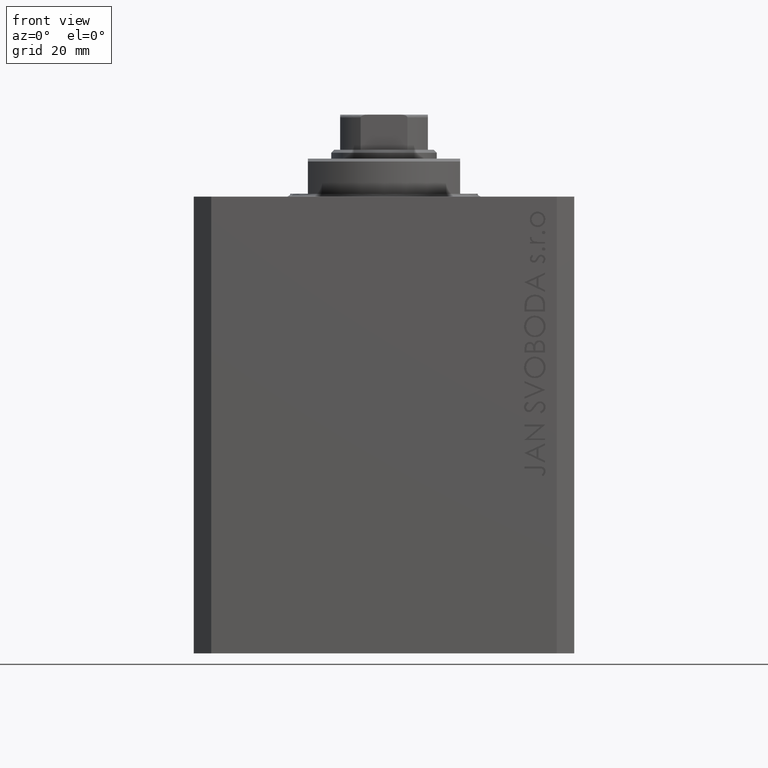
[diagram: clean part render]
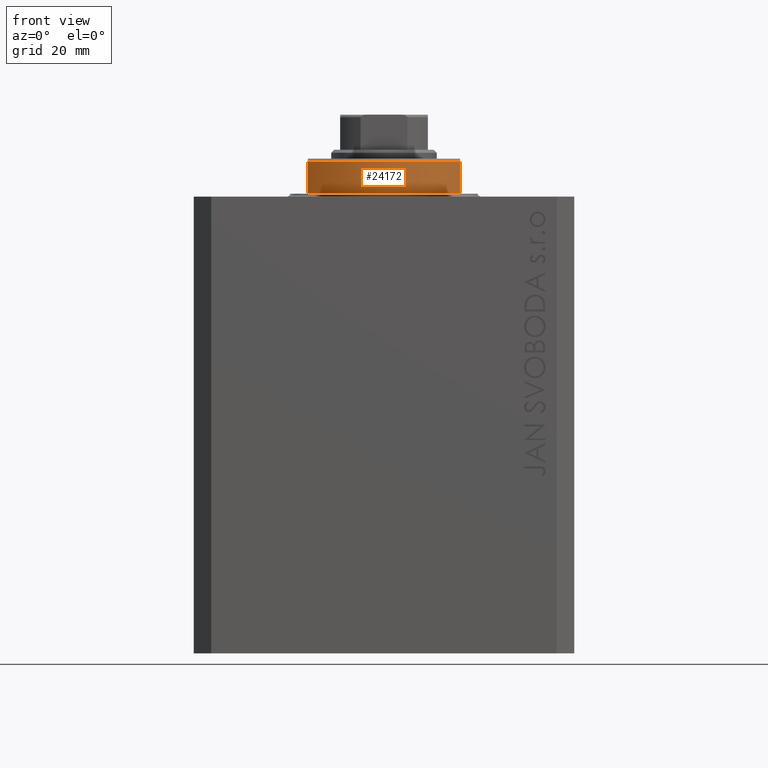
[diagram: same view with one face highlighted and labeled with its STEP entity id]
A machine part, front view. The second image highlights one B-rep face of the part: STEP entity #24172.
In plain terms, the highlighted cylindrical surface (partial cylindrical patch) has radius 16 mm, axis along (0, 0, -1).
Its self-contained STEP definition (entity closure, byte-faithful):
#414 = CIRCLE ( 'NONE', #24062, 16.00000000000000000 ) ;
#1520 = AXIS2_PLACEMENT_3D ( 'NONE', #4645, #33520, #26380 ) ;
#1906 = CARTESIAN_POINT ( 'NONE',  ( 13.00000000000000000, -9.327379053088815652, -0.4999999999999995559 ) ) ;
#2962 = CARTESIAN_POINT ( 'NONE',  ( -13.00000000000000000, -9.327379053088815652, -6.000000000000023981 ) ) ;
#3870 = VERTEX_POINT ( 'NONE', #2962 ) ;
#4645 = CARTESIAN_POINT ( 'NONE',  ( 0.000000000000000000, 0.000000000000000000, -6.500000000000000000 ) ) ;
#7125 = LINE ( 'NONE', #18096, #8675 ) ;
#8675 = VECTOR ( 'NONE', #33124, 1000.000000000000000 ) ;
#9573 = CARTESIAN_POINT ( 'NONE',  ( 13.00000000000000000, -9.327379053088815652, -6.000000000000023981 ) ) ;
#10138 = CARTESIAN_POINT ( 'NONE',  ( 13.00000000000000000, -9.327379053088813876, -6.500000000000000000 ) ) ;
#10613 = DIRECTION ( 'NONE',  ( 0.000000000000000000, 0.000000000000000000, -1.000000000000000000 ) ) ;
#11432 = EDGE_CURVE ( 'NONE', #3870, #35606, #14954, .T. ) ;
#11822 = FACE_OUTER_BOUND ( 'NONE', #16236, .T. ) ;
#12028 = CARTESIAN_POINT ( 'NONE',  ( 0.000000000000000000, 0.000000000000000000, -6.000000000000023981 ) ) ;
#14519 = CARTESIAN_POINT ( 'NONE',  ( 0.000000000000000000, 0.000000000000000000, -0.4999999999999995559 ) ) ;
#14954 = CIRCLE ( 'NONE', #33207, 16.00000000000000000 ) ;
#16236 = EDGE_LOOP ( 'NONE', ( #42109, #23429, #22215, #19773 ) ) ;
#18096 = CARTESIAN_POINT ( 'NONE',  ( -13.00000000000000000, -9.327379053088813876, -6.500000000000000000 ) ) ;
#19773 = ORIENTED_EDGE ( 'NONE', *, *, #11432, .T. ) ;
#20977 = DIRECTION ( 'NONE',  ( 1.000000000000000000, 0.000000000000000000, 0.000000000000000000 ) ) ;
#21839 = EDGE_CURVE ( 'NONE', #26962, #35606, #39238, .T. ) ;
#21860 = DIRECTION ( 'NONE',  ( 0.000000000000000000, 0.000000000000000000, 1.000000000000000000 ) ) ;
#22215 = ORIENTED_EDGE ( 'NONE', *, *, #42651, .T. ) ;
#23429 = ORIENTED_EDGE ( 'NONE', *, *, #47202, .T. ) ;
#24062 = AXIS2_PLACEMENT_3D ( 'NONE', #14519, #42684, #20977 ) ;
#24172 = ADVANCED_FACE ( 'NONE', ( #11822 ), #40917, .T. ) ;
#24311 = VERTEX_POINT ( 'NONE', #44174 ) ;
#26380 = DIRECTION ( 'NONE',  ( 1.000000000000000000, 0.000000000000000000, 0.000000000000000000 ) ) ;
#26962 = VERTEX_POINT ( 'NONE', #1906 ) ;
#33124 = DIRECTION ( 'NONE',  ( 0.000000000000000000, 0.000000000000000000, -1.000000000000000000 ) ) ;
#33207 = AXIS2_PLACEMENT_3D ( 'NONE', #12028, #21860, #40886 ) ;
#33520 = DIRECTION ( 'NONE',  ( -0.000000000000000000, -0.000000000000000000, 1.000000000000000000 ) ) ;
#35606 = VERTEX_POINT ( 'NONE', #9573 ) ;
#35750 = VECTOR ( 'NONE', #10613, 1000.000000000000000 ) ;
#39238 = LINE ( 'NONE', #10138, #35750 ) ;
#40886 = DIRECTION ( 'NONE',  ( -1.000000000000000000, 0.000000000000000000, 0.000000000000000000 ) ) ;
#40917 = CYLINDRICAL_SURFACE ( 'NONE', #1520, 16.00000000000000000 ) ;
#42109 = ORIENTED_EDGE ( 'NONE', *, *, #21839, .F. ) ;
#42651 = EDGE_CURVE ( 'NONE', #24311, #3870, #7125, .T. ) ;
#42684 = DIRECTION ( 'NONE',  ( -0.000000000000000000, -0.000000000000000000, -1.000000000000000000 ) ) ;
#44174 = CARTESIAN_POINT ( 'NONE',  ( -13.00000000000000000, -9.327379053088815652, -0.4999999999999995559 ) ) ;
#47202 = EDGE_CURVE ( 'NONE', #26962, #24311, #414, .T. ) ;